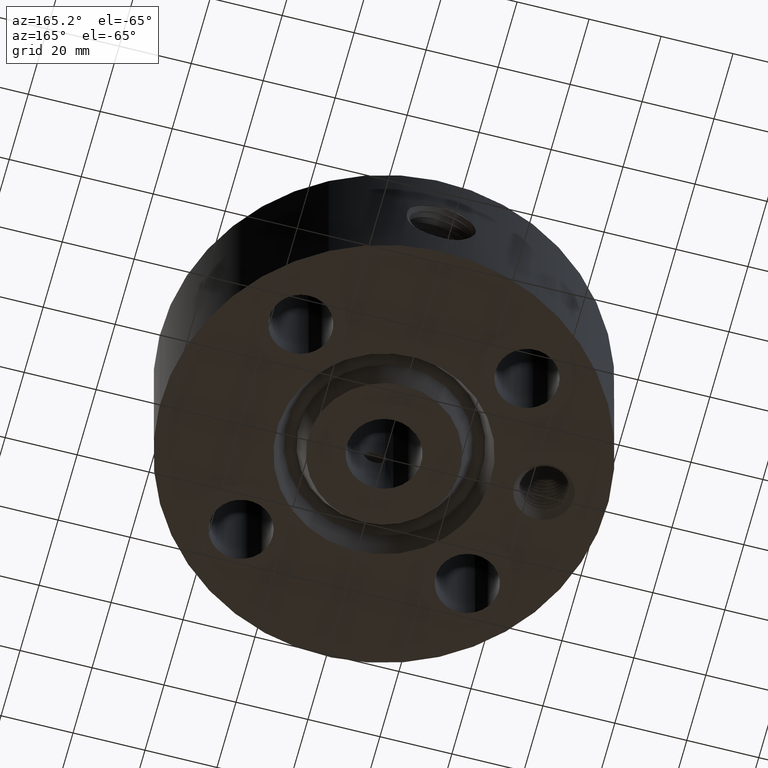
[diagram: clean part render]
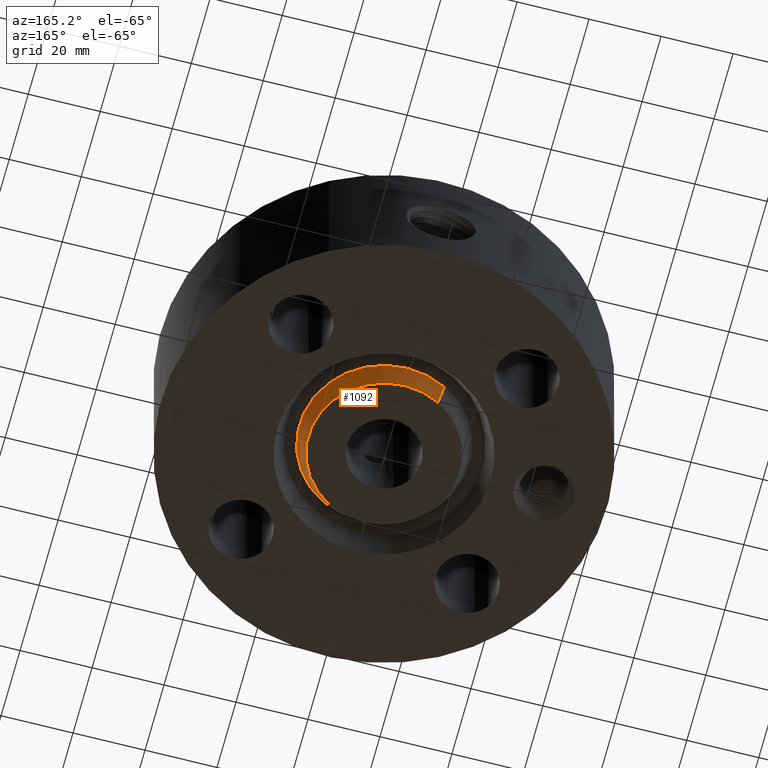
[diagram: same view with one face highlighted and labeled with its STEP entity id]
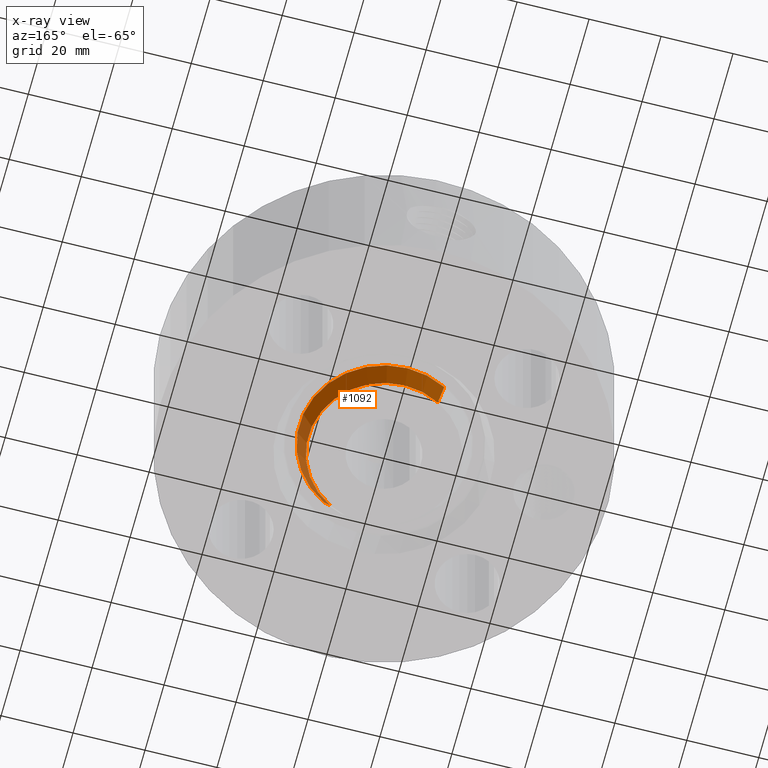
[diagram: x-ray of the same camera — body ghosted, the highlighted face saturated]
A machine part, auxiliary view. The second image highlights one B-rep face of the part: STEP entity #1092.
The next image is the same camera in x-ray: the body ghosted, the highlighted face saturated — about 0% of this face is hidden behind the body in this view.
In plain terms, the highlighted conical surface has half-angle 23 deg.
Its self-contained STEP definition (entity closure, byte-faithful):
#614=AXIS2_PLACEMENT_3D('Circle Axis2P3D',#612,#613,$) ;
#1065=AXIS2_PLACEMENT_3D('Cone Axis2P3D',#1062,#1063,#1064) ;
#1076=AXIS2_PLACEMENT_3D('Circle Axis2P3D',#1074,#1075,$) ;
#612=CARTESIAN_POINT('Axis2P3D Location',(0.,0.,0.)) ;
#616=CARTESIAN_POINT('Vertex',(-0.396964345966,0.726638361248,0.)) ;
#618=CARTESIAN_POINT('Vertex',(0.396964345966,-0.726638361248,0.)) ;
#1062=CARTESIAN_POINT('Axis2P3D Location',(0.,0.,-0.0600000000002)) ;
#1067=CARTESIAN_POINT('Line Origine',(-0.42048052964,0.769684446725,0.115556332492)) ;
#1071=CARTESIAN_POINT('Vertex',(-0.443996713314,0.812730532203,0.231112664984)) ;
#1074=CARTESIAN_POINT('Axis2P3D Location',(0.,0.,0.231112664984)) ;
#1078=CARTESIAN_POINT('Vertex',(0.443996713314,-0.812730532203,0.231112664984)) ;
#1081=CARTESIAN_POINT('Line Origine',(0.42048052964,-0.769684446725,0.115556332492)) ;
#613=DIRECTION('Axis2P3D Direction',(0.,0.,-0.0393700787402)) ;
#1063=DIRECTION('Axis2P3D Direction',(0.,0.,0.0393700787402)) ;
#1064=DIRECTION('Axis2P3D XDirection',(-0.0188750212049,0.0345504945626,0.)) ;
#1068=DIRECTION('Vector Direction',(-0.00737505833565,0.0134999537303,0.0362403485611)) ;
#1075=DIRECTION('Axis2P3D Direction',(0.,0.,0.0393700787402)) ;
#1082=DIRECTION('Vector Direction',(0.00737505833565,-0.0134999537303,0.0362403485611)) ;
#1069=VECTOR('Line Direction',#1068,0.0393700787402) ;
#1083=VECTOR('Line Direction',#1082,0.0393700787402) ;
#1087=ORIENTED_EDGE('',*,*,#1073,.F.) ;
#1088=ORIENTED_EDGE('',*,*,#1080,.F.) ;
#1089=ORIENTED_EDGE('',*,*,#1085,.T.) ;
#1090=ORIENTED_EDGE('',*,*,#620,.F.) ;
#1092=ADVANCED_FACE('PartBody',(#1091),#1066,.T.) ;
#615=CIRCLE('generated circle',#614,0.828000000003) ;
#1077=CIRCLE('generated circle',#1076,0.926101505996) ;
#1066=CONICAL_SURFACE('Cone',#1065,0.802531511031,0.401425727959) ;
#620=EDGE_CURVE('',#617,#619,#615,.T.) ;
#1073=EDGE_CURVE('',#1072,#617,#1070,.F.) ;
#1080=EDGE_CURVE('',#1079,#1072,#1077,.T.) ;
#1085=EDGE_CURVE('',#1079,#619,#1084,.F.) ;
#1086=EDGE_LOOP('',(#1087,#1088,#1089,#1090)) ;
#1091=FACE_OUTER_BOUND('',#1086,.T.) ;
#1070=LINE('Line',#1067,#1069) ;
#1084=LINE('Line',#1081,#1083) ;
#617=VERTEX_POINT('',#616) ;
#619=VERTEX_POINT('',#618) ;
#1072=VERTEX_POINT('',#1071) ;
#1079=VERTEX_POINT('',#1078) ;